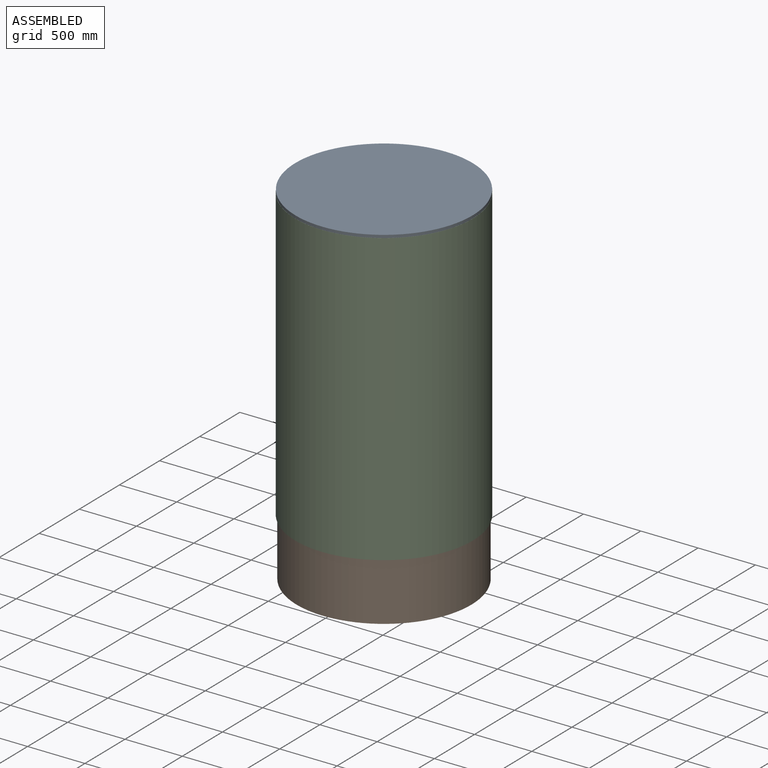
[diagram: assembled view]
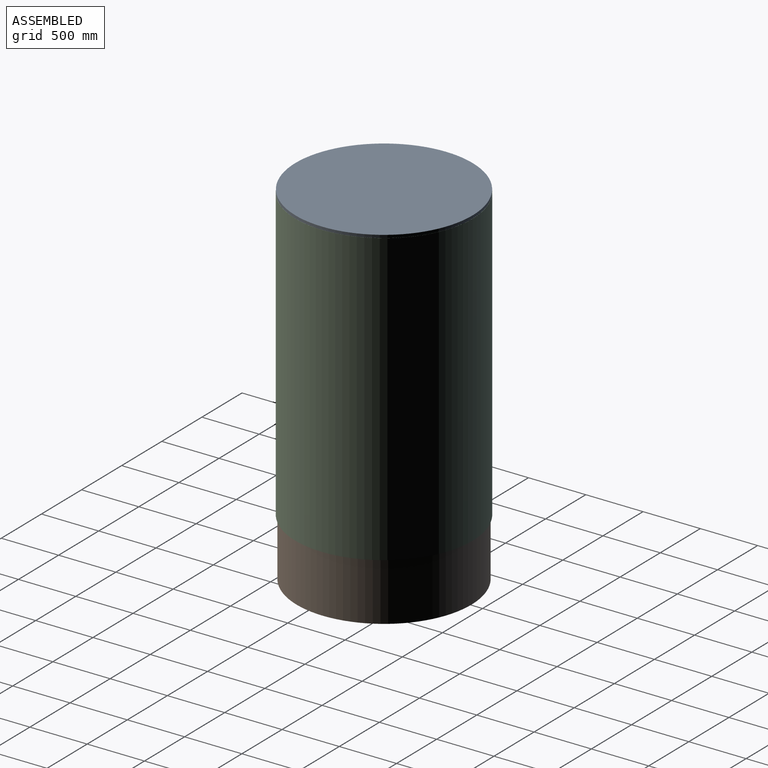
[diagram: assembled view, second angle]
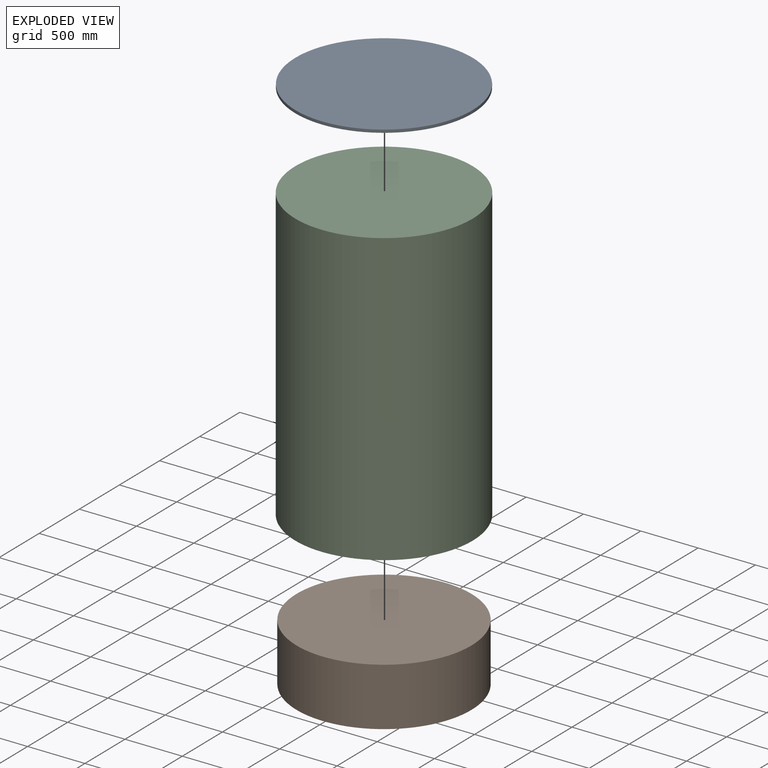
[diagram: exploded view]
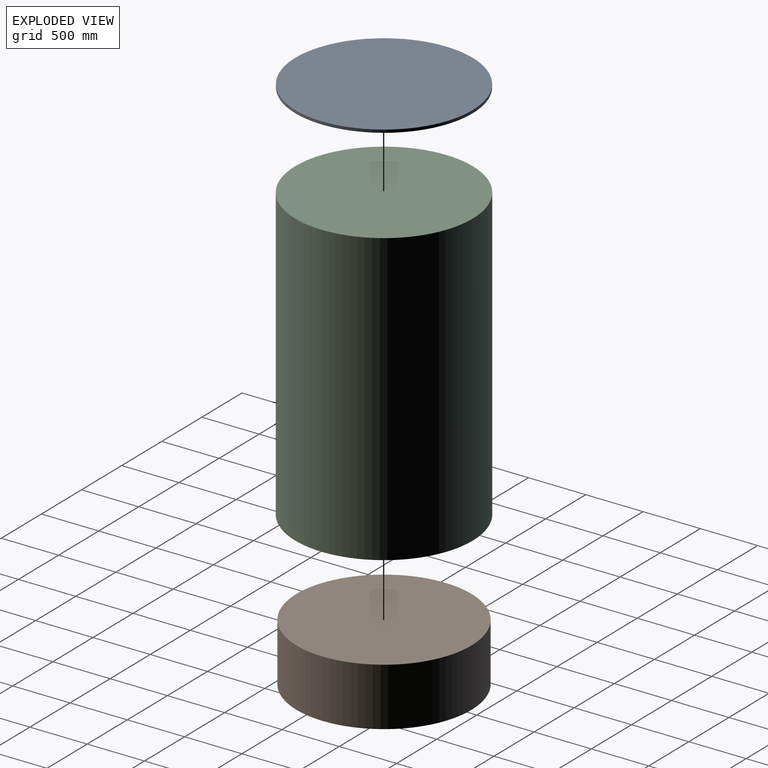
[diagram: exploded view, second angle]
ASSEMBLY  parts=3 mates=2
PART A: 3 faces, bbox 1545.9x1545.9x25.4 mm
  f0: cylinder r=772.95mm len=1545.91mm, axis (0,0,-1), area 123358mm2, adj f1,f2
  f1: plane 1545.91x1545.91mm, normal (0,0,1), area 1876968.9mm2, adj f0
  f2: plane 1545.91x1545.91mm, normal (0,0,-1), area 1876968.9mm2, adj f0
PART B: 3 faces, bbox 1525.5x1525.5x508 mm
  f0: cylinder r=762.74mm len=1525.47mm, axis (0,0,-1), area 2434548.3mm2, adj f1,f2
  f1: plane 1525.47x1525.47mm, normal (0,0,1), area 1827677.2mm2, adj f0
  f2: plane 1525.47x1525.47mm, normal (0,0,-1), area 1827677.2mm2, adj f0
PART C: 3 faces, bbox 1548.1x1548.1x2540 mm
  f0: cylinder r=774.07mm len=2540mm, axis (0,0,-1), area 12353615.2mm2, adj f1,f2
  f1: plane 1548.14x1548.14mm, normal (0,0,1), area 1882395.4mm2, adj f0
  f2: plane 1548.14x1548.14mm, normal (0,0,-1), area 1882395.4mm2, adj f0
PLACE A t=(51.45,-273.58,-300.21)mm
PLACE B t=(51.45,-273.58,-3348.21)mm
PLACE C t=(51.45,-273.58,-2840.21)mm
MATE planar A.f0 <-> C.f0  axis (0,0,-1) through (51.45,-273.58,-300.21)mm
MATE planar B.f0 <-> C.f0  axis (0,0,1) through (51.45,-273.58,-2840.21)mm
